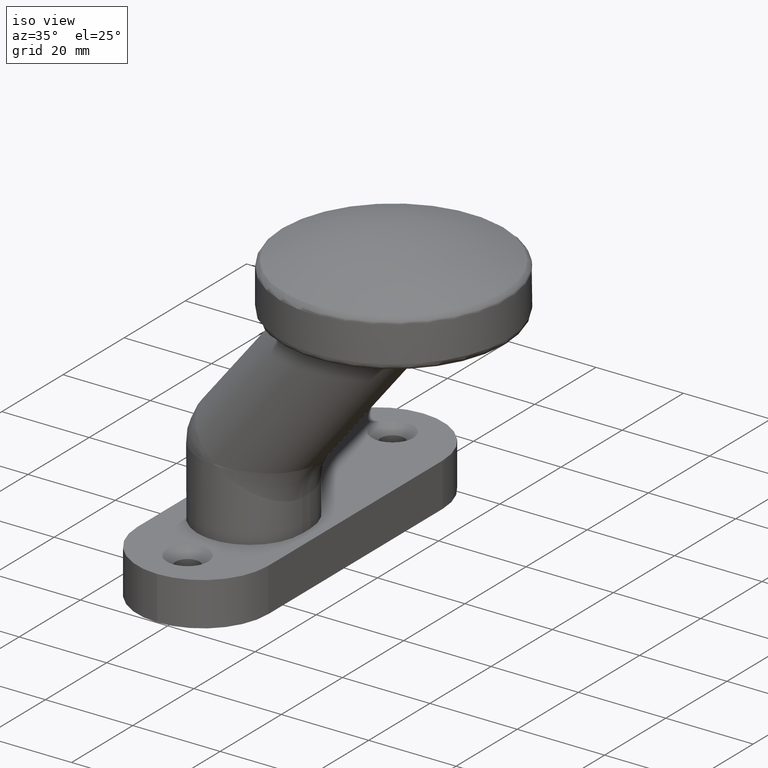
[diagram: clean part render]
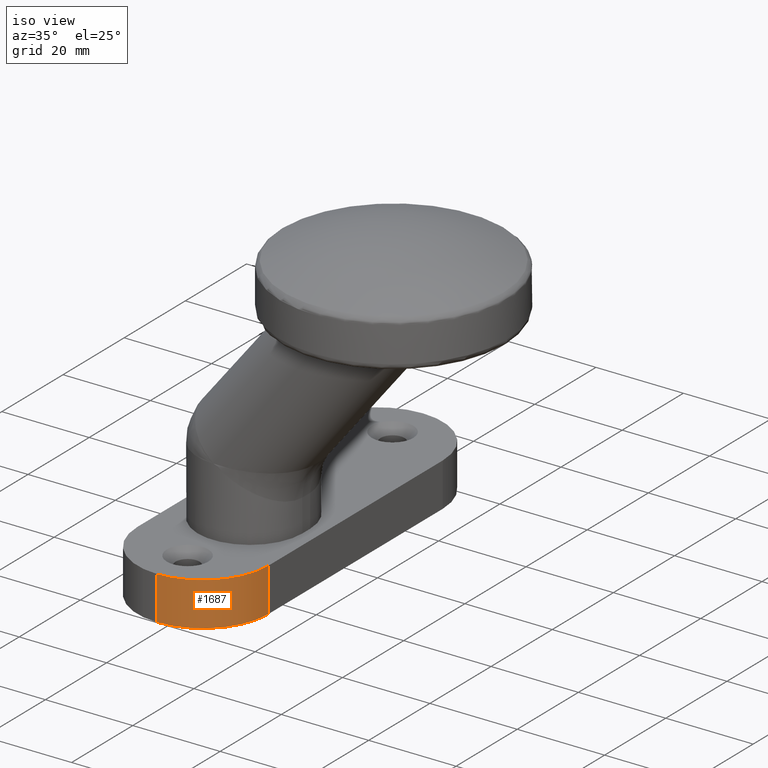
[diagram: same view with one face highlighted and labeled with its STEP entity id]
A machine part, iso view. The second image highlights one B-rep face of the part: STEP entity #1687.
In plain terms, the highlighted cylindrical surface (partial cylindrical patch) has radius 15 mm, axis along (0, 0, -1).
Its self-contained STEP definition (entity closure, byte-faithful):
#23 = VERTEX_POINT ( 'NONE', #8866 ) ;
#44 = FACE_OUTER_BOUND ( 'NONE', #9134, .T. ) ;
#647 = DIRECTION ( 'NONE',  ( 1.000000000000000000, 0.000000000000000000, 0.000000000000000000 ) ) ;
#1053 = ORIENTED_EDGE ( 'NONE', *, *, #13286, .T. ) ;
#1343 = EDGE_CURVE ( 'NONE', #23, #2315, #11901, .T. ) ;
#1687 = ADVANCED_FACE ( 'NONE', ( #44 ), #5880, .T. ) ;
#1845 = VECTOR ( 'NONE', #7491, 1000.000000000000000 ) ;
#1944 = CARTESIAN_POINT ( 'NONE',  ( -6.938893903907228378E-15, -28.50000000000000355, -5.000000000000000000 ) ) ;
#1981 = EDGE_CURVE ( 'NONE', #2315, #11306, #2467, .T. ) ;
#2315 = VERTEX_POINT ( 'NONE', #8850 ) ;
#2442 = CARTESIAN_POINT ( 'NONE',  ( 14.99999999999999289, -28.50000000000000355, -5.000000000000000000 ) ) ;
#2467 = LINE ( 'NONE', #8106, #10639 ) ;
#2773 = CARTESIAN_POINT ( 'NONE',  ( -6.938893903907228378E-15, -28.50000000000000355, 5.000000000000000000 ) ) ;
#4036 = DIRECTION ( 'NONE',  ( 1.000000000000000000, 0.000000000000000000, 0.000000000000000000 ) ) ;
#4559 = EDGE_CURVE ( 'NONE', #11306, #15525, #11094, .T. ) ;
#5363 = CARTESIAN_POINT ( 'NONE',  ( -6.938893903907228378E-15, -28.50000000000000355, 5.000000000000000000 ) ) ;
#5823 = AXIS2_PLACEMENT_3D ( 'NONE', #2773, #11351, #12547 ) ;
#5880 = CYLINDRICAL_SURFACE ( 'NONE', #5823, 15.00000000000000000 ) ;
#6874 = DIRECTION ( 'NONE',  ( 0.000000000000000000, -0.000000000000000000, -1.000000000000000000 ) ) ;
#7389 = CARTESIAN_POINT ( 'NONE',  ( 6.938893903907228378E-15, -43.50000000000000711, -5.000000000000000000 ) ) ;
#7491 = DIRECTION ( 'NONE',  ( -0.000000000000000000, 0.000000000000000000, -1.000000000000000000 ) ) ;
#8106 = CARTESIAN_POINT ( 'NONE',  ( 14.99999999999999289, -28.50000000000000355, 5.000000000000000000 ) ) ;
#8850 = CARTESIAN_POINT ( 'NONE',  ( 14.99999999999999289, -28.50000000000000355, 5.000000000000000000 ) ) ;
#8866 = CARTESIAN_POINT ( 'NONE',  ( 6.938893903907228378E-15, -43.50000000000000711, 5.000000000000000000 ) ) ;
#9134 = EDGE_LOOP ( 'NONE', ( #12240, #1053, #9329, #9589 ) ) ;
#9329 = ORIENTED_EDGE ( 'NONE', *, *, #4559, .F. ) ;
#9589 = ORIENTED_EDGE ( 'NONE', *, *, #1981, .F. ) ;
#10639 = VECTOR ( 'NONE', #15176, 1000.000000000000000 ) ;
#11094 = CIRCLE ( 'NONE', #12417, 15.00000000000000000 ) ;
#11306 = VERTEX_POINT ( 'NONE', #2442 ) ;
#11351 = DIRECTION ( 'NONE',  ( 0.000000000000000000, 0.000000000000000000, -1.000000000000000000 ) ) ;
#11752 = LINE ( 'NONE', #14759, #1845 ) ;
#11901 = CIRCLE ( 'NONE', #12910, 15.00000000000000000 ) ;
#12240 = ORIENTED_EDGE ( 'NONE', *, *, #1343, .F. ) ;
#12417 = AXIS2_PLACEMENT_3D ( 'NONE', #1944, #6874, #647 ) ;
#12547 = DIRECTION ( 'NONE',  ( -1.000000000000000000, 0.000000000000000000, 0.000000000000000000 ) ) ;
#12910 = AXIS2_PLACEMENT_3D ( 'NONE', #5363, #13868, #4036 ) ;
#13286 = EDGE_CURVE ( 'NONE', #23, #15525, #11752, .T. ) ;
#13868 = DIRECTION ( 'NONE',  ( -0.000000000000000000, 0.000000000000000000, 1.000000000000000000 ) ) ;
#14759 = CARTESIAN_POINT ( 'NONE',  ( 6.938893903907228378E-15, -43.50000000000000711, 5.000000000000000000 ) ) ;
#15176 = DIRECTION ( 'NONE',  ( 0.000000000000000000, 0.000000000000000000, -1.000000000000000000 ) ) ;
#15525 = VERTEX_POINT ( 'NONE', #7389 ) ;